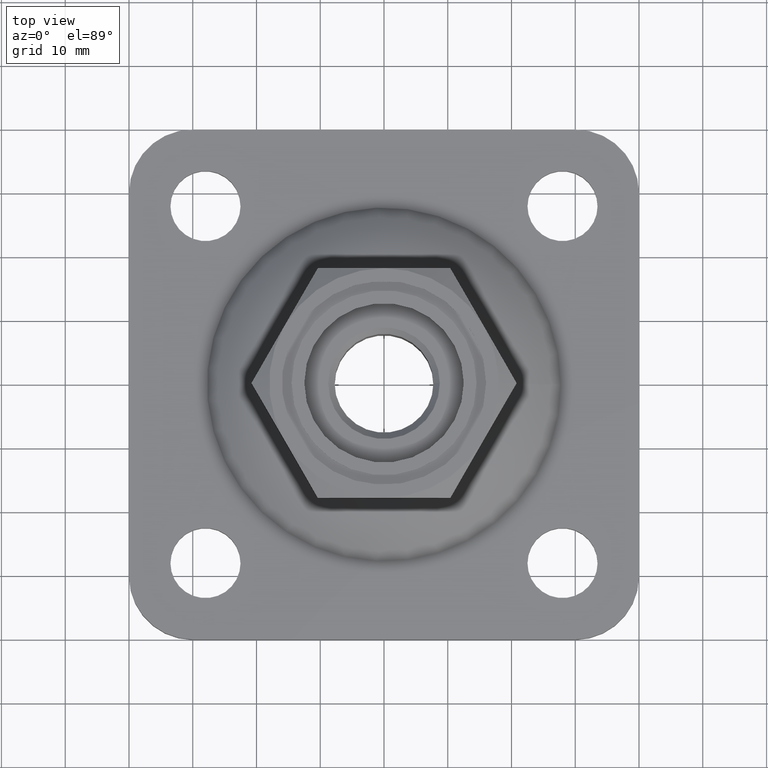
[diagram: clean part render]
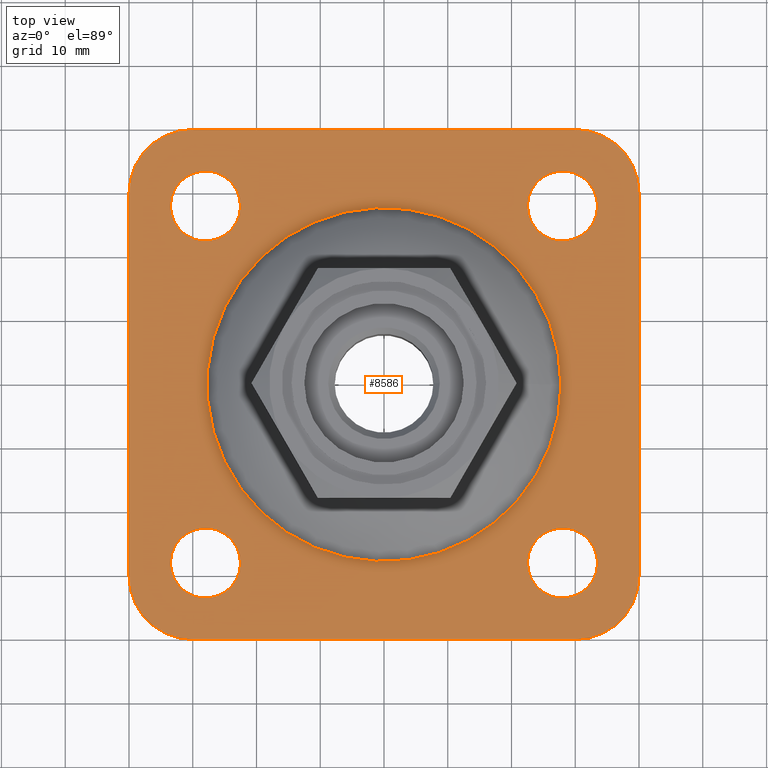
[diagram: same view with one face highlighted and labeled with its STEP entity id]
A machine part, top view. The second image highlights one B-rep face of the part: STEP entity #8586.
In plain terms, the highlighted planar face has unit normal (0, 0, -1).
Its self-contained STEP definition (entity closure, byte-faithful):
#65 = DIRECTION ( 'NONE',  ( 1.000000000000000000, 0.000000000000000000, 0.000000000000000000 ) ) ;
#151 = VECTOR ( 'NONE', #13673, 1000.000000000000000 ) ;
#193 = CIRCLE ( 'NONE', #360, 9.999999999999998224 ) ;
#309 = CARTESIAN_POINT ( 'NONE',  ( 0.000000000000000000, -40.00000000000000000, 5.000000000000004441 ) ) ;
#321 = AXIS2_PLACEMENT_3D ( 'NONE', #4646, #12127, #14736 ) ;
#326 = FACE_OUTER_BOUND ( 'NONE', #883, .T. ) ;
#360 = AXIS2_PLACEMENT_3D ( 'NONE', #14337, #6865, #9377 ) ;
#398 = CARTESIAN_POINT ( 'NONE',  ( 0.000000000000000000, 0.000000000000000000, 5.000000000000000888 ) ) ;
#596 = ORIENTED_EDGE ( 'NONE', *, *, #4086, .F. ) ;
#883 = EDGE_LOOP ( 'NONE', ( #1295, #13629, #596, #16122, #13355, #10830, #2156, #1063 ) ) ;
#940 = CARTESIAN_POINT ( 'NONE',  ( 30.00000000000001066, 40.00000000000000000, 5.000000000000004441 ) ) ;
#1057 = CARTESIAN_POINT ( 'NONE',  ( 40.00000000000000711, -30.00000000000000000, 5.000000000000004441 ) ) ;
#1063 = ORIENTED_EDGE ( 'NONE', *, *, #11677, .T. ) ;
#1184 = AXIS2_PLACEMENT_3D ( 'NONE', #8892, #2666, #11413 ) ;
#1295 = ORIENTED_EDGE ( 'NONE', *, *, #7250, .T. ) ;
#1409 = ORIENTED_EDGE ( 'NONE', *, *, #8384, .F. ) ;
#1559 = CARTESIAN_POINT ( 'NONE',  ( 0.000000000000000000, 40.00000000000000000, 5.000000000000004441 ) ) ;
#1639 = CARTESIAN_POINT ( 'NONE',  ( 33.49999999999999289, 28.00000000000002487, 5.000000000000000888 ) ) ;
#1963 = ORIENTED_EDGE ( 'NONE', *, *, #9947, .F. ) ;
#2086 = AXIS2_PLACEMENT_3D ( 'NONE', #3006, #3216, #13111 ) ;
#2156 = ORIENTED_EDGE ( 'NONE', *, *, #7355, .T. ) ;
#2320 = EDGE_CURVE ( 'NONE', #3714, #3714, #15656, .T. ) ;
#2344 = VERTEX_POINT ( 'NONE', #6630 ) ;
#2602 = DIRECTION ( 'NONE',  ( 0.000000000000000000, 0.000000000000000000, 1.000000000000000000 ) ) ;
#2621 = CARTESIAN_POINT ( 'NONE',  ( -29.99999999999999289, 40.00000000000000000, 5.000000000000004441 ) ) ;
#2666 = DIRECTION ( 'NONE',  ( -0.000000000000000000, -0.000000000000000000, 1.000000000000000000 ) ) ;
#2691 = LINE ( 'NONE', #309, #8944 ) ;
#2947 = DIRECTION ( 'NONE',  ( -0.000000000000000000, -0.000000000000000000, 1.000000000000000000 ) ) ;
#3006 = CARTESIAN_POINT ( 'NONE',  ( 0.000000000000000000, 27.75000000000000000, 5.000000000000000888 ) ) ;
#3015 = AXIS2_PLACEMENT_3D ( 'NONE', #13732, #2602, #7681 ) ;
#3023 = DIRECTION ( 'NONE',  ( 1.000000000000000000, 0.000000000000000000, 0.000000000000000000 ) ) ;
#3216 = DIRECTION ( 'NONE',  ( 0.000000000000000000, 0.000000000000000000, -1.000000000000000000 ) ) ;
#3585 = EDGE_CURVE ( 'NONE', #4792, #10831, #8374, .T. ) ;
#3699 = AXIS2_PLACEMENT_3D ( 'NONE', #4664, #5129, #8829 ) ;
#3714 = VERTEX_POINT ( 'NONE', #5343 ) ;
#3974 = CIRCLE ( 'NONE', #1184, 9.999999999999998224 ) ;
#4086 = EDGE_CURVE ( 'NONE', #14128, #7571, #6255, .T. ) ;
#4646 = CARTESIAN_POINT ( 'NONE',  ( 27.99999999999999289, 28.00000000000002487, 5.000000000000000888 ) ) ;
#4664 = CARTESIAN_POINT ( 'NONE',  ( -28.00000000000000711, -27.99999999999998224, 5.000000000000000888 ) ) ;
#4792 = VERTEX_POINT ( 'NONE', #13403 ) ;
#4818 = CIRCLE ( 'NONE', #3015, 5.500000000000001776 ) ;
#4959 = CARTESIAN_POINT ( 'NONE',  ( 40.00000000000000711, -3.469446951953614978E-15, 5.000000000000004441 ) ) ;
#5129 = DIRECTION ( 'NONE',  ( 0.000000000000000000, 0.000000000000000000, 1.000000000000000000 ) ) ;
#5203 = EDGE_CURVE ( 'NONE', #14128, #10831, #6802, .T. ) ;
#5238 = CARTESIAN_POINT ( 'NONE',  ( -22.50000000000000711, -27.99999999999998224, 5.000000000000000888 ) ) ;
#5241 = DIRECTION ( 'NONE',  ( -0.000000000000000000, -0.000000000000000000, 1.000000000000000000 ) ) ;
#5343 = CARTESIAN_POINT ( 'NONE',  ( -22.50000000000000711, 28.00000000000001066, 5.000000000000000888 ) ) ;
#5398 = CARTESIAN_POINT ( 'NONE',  ( 33.49999999999999289, -27.99999999999998224, 5.000000000000000888 ) ) ;
#5566 = VERTEX_POINT ( 'NONE', #1057 ) ;
#5756 = VERTEX_POINT ( 'NONE', #11215 ) ;
#6001 = LINE ( 'NONE', #4959, #151 ) ;
#6047 = ORIENTED_EDGE ( 'NONE', *, *, #2320, .F. ) ;
#6254 = CARTESIAN_POINT ( 'NONE',  ( -39.99999999999999289, 0.000000000000000000, 5.000000000000004441 ) ) ;
#6255 = LINE ( 'NONE', #1559, #15802 ) ;
#6544 = DIRECTION ( 'NONE',  ( -1.000000000000000000, 0.000000000000000000, 0.000000000000000000 ) ) ;
#6630 = CARTESIAN_POINT ( 'NONE',  ( 27.75000000000000000, 0.000000000000000000, 5.000000000000000888 ) ) ;
#6802 = CIRCLE ( 'NONE', #14390, 10.00000000000000178 ) ;
#6865 = DIRECTION ( 'NONE',  ( -0.000000000000000000, -0.000000000000000000, 1.000000000000000000 ) ) ;
#7071 = CARTESIAN_POINT ( 'NONE',  ( 40.00000000000000711, 30.00000000000000000, 5.000000000000004441 ) ) ;
#7250 = EDGE_CURVE ( 'NONE', #5566, #15733, #6001, .T. ) ;
#7355 = EDGE_CURVE ( 'NONE', #7771, #5756, #2691, .T. ) ;
#7482 = EDGE_CURVE ( 'NONE', #15786, #15786, #9493, .T. ) ;
#7571 = VERTEX_POINT ( 'NONE', #940 ) ;
#7622 = DIRECTION ( 'NONE',  ( -1.000000000000000000, 0.000000000000000000, 0.000000000000000000 ) ) ;
#7665 = CARTESIAN_POINT ( 'NONE',  ( -39.99999999999999289, 30.00000000000000000, 5.000000000000004441 ) ) ;
#7681 = DIRECTION ( 'NONE',  ( 1.000000000000000000, 0.000000000000000000, 0.000000000000000000 ) ) ;
#7728 = DIRECTION ( 'NONE',  ( -0.000000000000000000, 1.000000000000000000, 0.000000000000000000 ) ) ;
#7771 = VERTEX_POINT ( 'NONE', #15398 ) ;
#8374 = LINE ( 'NONE', #6254, #9371 ) ;
#8384 = EDGE_CURVE ( 'NONE', #11552, #11552, #4818, .T. ) ;
#8586 = ADVANCED_FACE ( 'NONE', ( #11663, #15730, #12823, #15917, #10472, #326 ), #14360, .F. ) ;
#8829 = DIRECTION ( 'NONE',  ( 1.000000000000000000, 0.000000000000000000, 0.000000000000000000 ) ) ;
#8878 = DIRECTION ( 'NONE',  ( -0.000000000000000000, -0.000000000000000000, 1.000000000000000000 ) ) ;
#8892 = CARTESIAN_POINT ( 'NONE',  ( 30.00000000000000355, -30.00000000000000000, 5.000000000000004441 ) ) ;
#8944 = VECTOR ( 'NONE', #10304, 1000.000000000000000 ) ;
#9169 = CIRCLE ( 'NONE', #3699, 5.500000000000001776 ) ;
#9371 = VECTOR ( 'NONE', #7728, 1000.000000000000000 ) ;
#9377 = DIRECTION ( 'NONE',  ( -1.000000000000000000, 0.000000000000000000, 0.000000000000000000 ) ) ;
#9493 = CIRCLE ( 'NONE', #321, 5.500000000000001776 ) ;
#9947 = EDGE_CURVE ( 'NONE', #2344, #2344, #14503, .T. ) ;
#10304 = DIRECTION ( 'NONE',  ( 1.000000000000000000, 0.000000000000000000, 0.000000000000000000 ) ) ;
#10472 = FACE_BOUND ( 'NONE', #11895, .T. ) ;
#10627 = CARTESIAN_POINT ( 'NONE',  ( -28.00000000000000711, 28.00000000000001066, 5.000000000000000888 ) ) ;
#10736 = VERTEX_POINT ( 'NONE', #5238 ) ;
#10778 = ORIENTED_EDGE ( 'NONE', *, *, #16131, .F. ) ;
#10831 = VERTEX_POINT ( 'NONE', #7665 ) ;
#10830 = ORIENTED_EDGE ( 'NONE', *, *, #11854, .T. ) ;
#10945 = EDGE_LOOP ( 'NONE', ( #10778 ) ) ;
#11215 = CARTESIAN_POINT ( 'NONE',  ( 30.00000000000000355, -40.00000000000000000, 5.000000000000004441 ) ) ;
#11413 = DIRECTION ( 'NONE',  ( -1.000000000000000000, 1.040834085586084454E-15, 0.000000000000000000 ) ) ;
#11552 = VERTEX_POINT ( 'NONE', #5398 ) ;
#11663 = FACE_BOUND ( 'NONE', #10945, .T. ) ;
#11677 = EDGE_CURVE ( 'NONE', #5756, #5566, #3974, .T. ) ;
#11804 = EDGE_LOOP ( 'NONE', ( #1409 ) ) ;
#11854 = EDGE_CURVE ( 'NONE', #4792, #7771, #13925, .T. ) ;
#11873 = AXIS2_PLACEMENT_3D ( 'NONE', #10627, #13176, #3023 ) ;
#11878 = EDGE_LOOP ( 'NONE', ( #6047 ) ) ;
#11895 = EDGE_LOOP ( 'NONE', ( #1963 ) ) ;
#12127 = DIRECTION ( 'NONE',  ( 0.000000000000000000, 0.000000000000000000, 1.000000000000000000 ) ) ;
#12634 = ORIENTED_EDGE ( 'NONE', *, *, #7482, .F. ) ;
#12823 = FACE_BOUND ( 'NONE', #15012, .T. ) ;
#13111 = DIRECTION ( 'NONE',  ( -1.000000000000000000, 0.000000000000000000, -0.000000000000000000 ) ) ;
#13176 = DIRECTION ( 'NONE',  ( 0.000000000000000000, 0.000000000000000000, 1.000000000000000000 ) ) ;
#13182 = AXIS2_PLACEMENT_3D ( 'NONE', #398, #2947, #14240 ) ;
#13355 = ORIENTED_EDGE ( 'NONE', *, *, #3585, .F. ) ;
#13403 = CARTESIAN_POINT ( 'NONE',  ( -39.99999999999999289, -30.00000000000000000, 5.000000000000004441 ) ) ;
#13616 = AXIS2_PLACEMENT_3D ( 'NONE', #14002, #5241, #6544 ) ;
#13629 = ORIENTED_EDGE ( 'NONE', *, *, #15610, .T. ) ;
#13673 = DIRECTION ( 'NONE',  ( 8.673617379884036705E-17, 1.000000000000000000, 0.000000000000000000 ) ) ;
#13732 = CARTESIAN_POINT ( 'NONE',  ( 27.99999999999999289, -27.99999999999998224, 5.000000000000000888 ) ) ;
#13925 = CIRCLE ( 'NONE', #13616, 10.00000000000000178 ) ;
#14002 = CARTESIAN_POINT ( 'NONE',  ( -29.99999999999999289, -30.00000000000000000, 5.000000000000004441 ) ) ;
#14128 = VERTEX_POINT ( 'NONE', #2621 ) ;
#14240 = DIRECTION ( 'NONE',  ( 1.000000000000000000, 0.000000000000000000, 0.000000000000000000 ) ) ;
#14337 = CARTESIAN_POINT ( 'NONE',  ( 30.00000000000001066, 30.00000000000000000, 5.000000000000004441 ) ) ;
#14360 = PLANE ( 'NONE',  #2086 ) ;
#14390 = AXIS2_PLACEMENT_3D ( 'NONE', #15245, #8878, #7622 ) ;
#14503 = CIRCLE ( 'NONE', #13182, 27.75000000000000000 ) ;
#14736 = DIRECTION ( 'NONE',  ( 1.000000000000000000, 0.000000000000000000, 0.000000000000000000 ) ) ;
#15012 = EDGE_LOOP ( 'NONE', ( #12634 ) ) ;
#15245 = CARTESIAN_POINT ( 'NONE',  ( -29.99999999999999289, 30.00000000000000000, 5.000000000000004441 ) ) ;
#15398 = CARTESIAN_POINT ( 'NONE',  ( -29.99999999999999289, -40.00000000000000000, 5.000000000000004441 ) ) ;
#15610 = EDGE_CURVE ( 'NONE', #15733, #7571, #193, .T. ) ;
#15656 = CIRCLE ( 'NONE', #11873, 5.500000000000001776 ) ;
#15730 = FACE_BOUND ( 'NONE', #11878, .T. ) ;
#15733 = VERTEX_POINT ( 'NONE', #7071 ) ;
#15786 = VERTEX_POINT ( 'NONE', #1639 ) ;
#15802 = VECTOR ( 'NONE', #65, 1000.000000000000000 ) ;
#15917 = FACE_BOUND ( 'NONE', #11804, .T. ) ;
#16122 = ORIENTED_EDGE ( 'NONE', *, *, #5203, .T. ) ;
#16131 = EDGE_CURVE ( 'NONE', #10736, #10736, #9169, .T. ) ;